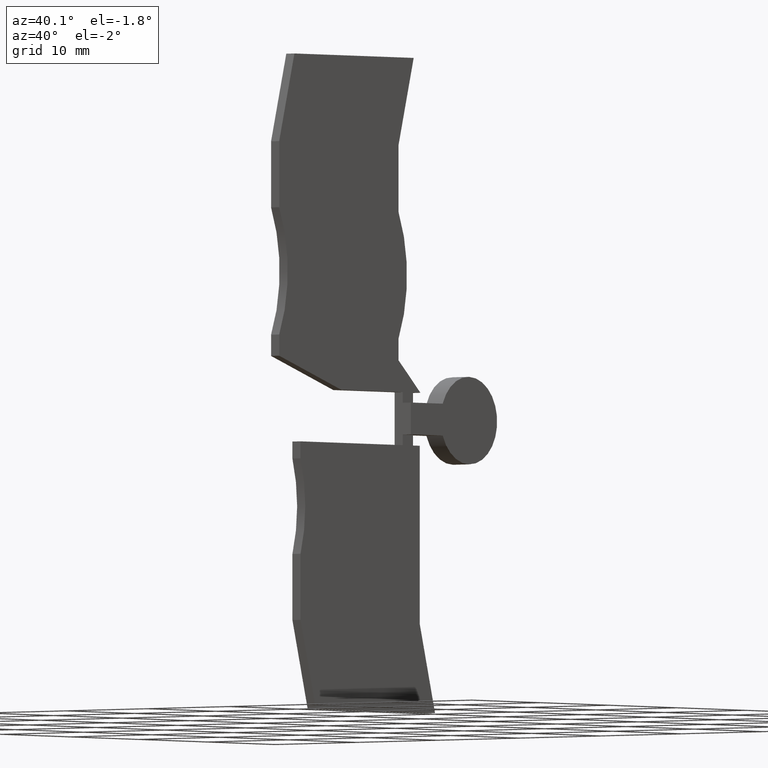
[diagram: clean part render]
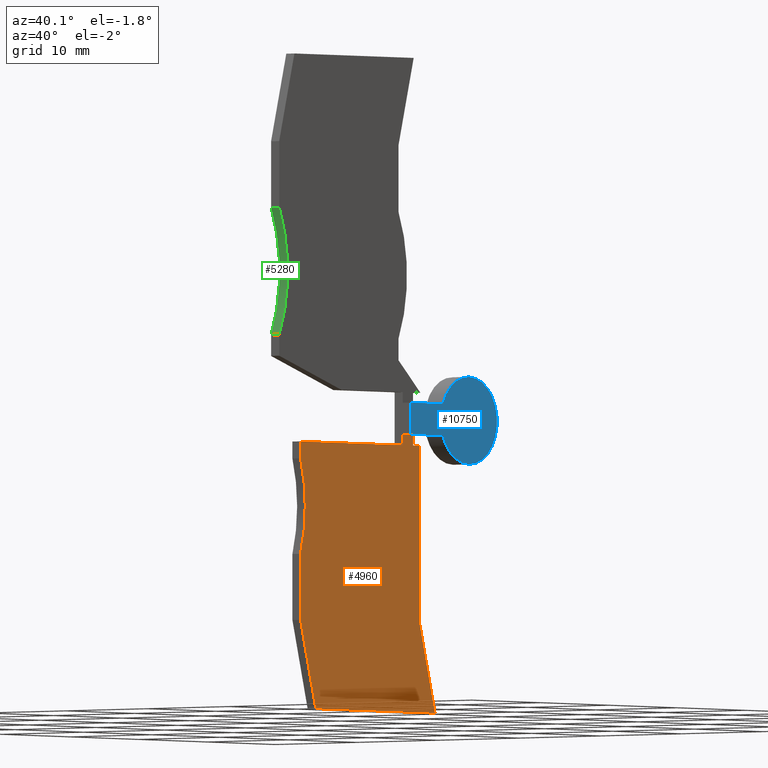
[diagram: same view with three faces highlighted in distinct colors, each labeled with its STEP entity id]
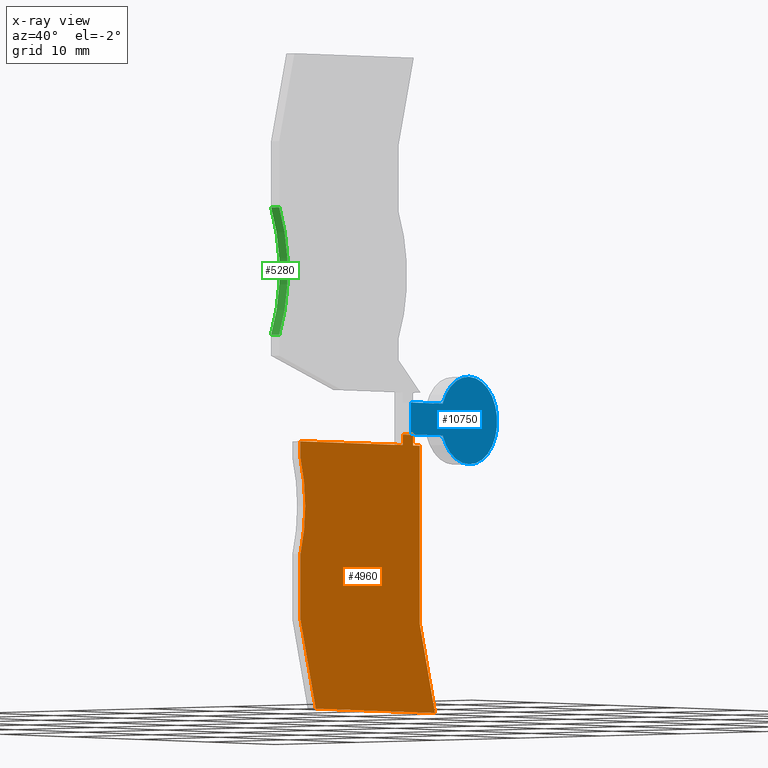
[diagram: x-ray of the same camera — body ghosted, the three highlighted faces saturated]
A machine part, auxiliary view with three faces highlighted in distinct colors.
The next image is the same camera in x-ray (body ghosted, the three faces saturated) — at least one of them is partly hidden behind the body in this view.
Their STEP definitions:

[orange] entity #4960 — the highlighted planar face has unit normal (1, -0, 0).
#100=CARTESIAN_POINT('',(27.7926050903251,-19.4833568228386,
3.70000000003257));
#110=VERTEX_POINT('',#100);
#160=CARTESIAN_POINT('',(42.1016931115784,-23.9833568228416,
3.70000000003257));
#170=DIRECTION('',(0.,0.,1.));
#180=DIRECTION('',(-1.,1.22464679914735E-16,0.));
#190=AXIS2_PLACEMENT_3D('',#160,#170,#180);
#200=CIRCLE('',#190,15.);
#210=CARTESIAN_POINT('',(27.7926050903252,-28.4833568228446,
3.70000000003257));
#220=VERTEX_POINT('',#210);
#230=EDGE_CURVE('',#110,#220,#200,.T.);
#610=CARTESIAN_POINT('',(27.7926050903252,-34.7178123662187,
3.70000000003257));
#620=VERTEX_POINT('',#610);
#720=CARTESIAN_POINT('',(27.7926050903252,6.334125,3.70000000003257));
#730=DIRECTION('',(1.22464679914735E-16,1.,0.));
#740=VECTOR('',#730,1.);
#750=LINE('',#720,#740);
#760=EDGE_CURVE('',#620,#220,#750,.T.);
#2820=CARTESIAN_POINT('',(27.7926050903251,-17.8833568228378,
3.70000000003257));
#2830=VERTEX_POINT('',#2820);
#2980=CARTESIAN_POINT('',(12.8426048224249,-17.8833568228378,
3.70000000003257));
#2990=VERTEX_POINT('',#2980);
#3020=CARTESIAN_POINT('',(10.836572,-17.8833568228378,3.70000000003257))
;
#3030=DIRECTION('',(-1.,1.22464679914735E-16,0.));
#3040=VECTOR('',#3030,1.);
#3050=LINE('',#3020,#3040);
#3060=EDGE_CURVE('',#2830,#2990,#3050,.T.);
#3540=CARTESIAN_POINT('',(21.3424385553537,6.334125,3.70000000003257));
#3550=DIRECTION('',(-0.258819045102899,-0.965925826288967,0.));
#3560=VECTOR('',#3550,1.);
#3570=LINE('',#3540,#3560);
#3580=CARTESIAN_POINT('',(10.3426050903255,-34.717812366217,
3.70000000003257));
#3590=VERTEX_POINT('',#3580);
#3600=CARTESIAN_POINT('',(8.11446166854492,-43.0333568228397,
3.70000000003257));
#3610=VERTEX_POINT('',#3600);
#3620=EDGE_CURVE('',#3590,#3610,#3570,.T.);
#4270=CARTESIAN_POINT('',(13.1805663120009,-32.0955988228394,
3.70000000003257));
#4280=DIRECTION('',(0.,-0.,-1.));
#4290=DIRECTION('',(1.,-1.22464679914735E-16,0.));
#4300=AXIS2_PLACEMENT_3D('',#4270,#4280,#4290);
#4310=PLANE('',#4300);
#4320=CARTESIAN_POINT('',(10.3426050903255,6.334125,3.70000000003257));
#4330=DIRECTION('',(-1.83847064084899E-17,-1.,0.));
#4340=VECTOR('',#4330,1.);
#4350=LINE('',#4320,#4340);
#4360=CARTESIAN_POINT('',(10.3426050903255,-17.8833568228378,
3.70000000003257));
#4370=VERTEX_POINT('',#4360);
#4380=EDGE_CURVE('',#4370,#3590,#4350,.T.);
#4390=ORIENTED_EDGE('',*,*,#4380,.F.);
#4400=ORIENTED_EDGE('',*,*,#3620,.F.);
#4410=CARTESIAN_POINT('',(10.836572,-43.0333568228397,3.70000000003257))
;
#4420=DIRECTION('',(1.,-1.22464679914735E-16,0.));
#4430=VECTOR('',#4420,1.);
#4440=LINE('',#4410,#4430);
#4450=CARTESIAN_POINT('',(25.5644616685449,-43.0333568228397,
3.70000000003257));
#4460=VERTEX_POINT('',#4450);
#4470=EDGE_CURVE('',#3610,#4460,#4440,.T.);
#4480=ORIENTED_EDGE('',*,*,#4470,.F.);
#4490=CARTESIAN_POINT('',(38.7924385553539,6.334125,3.70000000003257));
#4500=DIRECTION('',(0.258819045102903,0.965925826288966,0.));
#4510=VECTOR('',#4500,1.);
#4520=LINE('',#4490,#4510);
#4530=EDGE_CURVE('',#4460,#620,#4520,.T.);
#4540=ORIENTED_EDGE('',*,*,#4530,.F.);
#4550=ORIENTED_EDGE('',*,*,#760,.F.);
#4560=ORIENTED_EDGE('',*,*,#230,.T.);
#4570=CARTESIAN_POINT('',(27.7926050903252,6.334125,3.70000000003257));
#4580=DIRECTION('',(1.22464679914735E-16,1.,0.));
#4590=VECTOR('',#4580,1.);
#4600=LINE('',#4570,#4590);
#4610=EDGE_CURVE('',#110,#2830,#4600,.T.);
#4620=ORIENTED_EDGE('',*,*,#4610,.F.);
#4630=ORIENTED_EDGE('',*,*,#3060,.F.);
#4640=CARTESIAN_POINT('',(12.8426048224249,6.334125,3.70000000003257));
#4650=DIRECTION('',(0.,1.,0.));
#4660=VECTOR('',#4650,1.);
#4670=LINE('',#4640,#4660);
#4680=CARTESIAN_POINT('',(12.8426048224249,-16.8833568228378,
3.70000000003257));
#4690=VERTEX_POINT('',#4680);
#4700=EDGE_CURVE('',#2990,#4690,#4670,.T.);
#4710=ORIENTED_EDGE('',*,*,#4700,.F.);
#4720=CARTESIAN_POINT('',(10.836572,-16.8833568228378,3.70000000003257))
;
#4730=DIRECTION('',(-1.,0.,0.));
#4740=VECTOR('',#4730,1.);
#4750=LINE('',#4720,#4740);
#4760=CARTESIAN_POINT('',(11.3426048224249,-16.8833568228378,
3.70000000003257));
#4770=VERTEX_POINT('',#4760);
#4780=EDGE_CURVE('',#4690,#4770,#4750,.T.);
#4790=ORIENTED_EDGE('',*,*,#4780,.F.);
#4800=CARTESIAN_POINT('',(11.3426048224249,6.334125,3.70000000003257));
#4810=DIRECTION('',(0.,-1.,0.));
#4820=VECTOR('',#4810,1.);
#4830=LINE('',#4800,#4820);
#4840=CARTESIAN_POINT('',(11.3426048224249,-17.8833568228378,
3.70000000003257));
#4850=VERTEX_POINT('',#4840);
#4860=EDGE_CURVE('',#4770,#4850,#4830,.T.);
#4870=ORIENTED_EDGE('',*,*,#4860,.F.);
#4880=CARTESIAN_POINT('',(10.836572,-17.8833568228378,3.70000000003257))
;
#4890=DIRECTION('',(-1.,1.22464679914735E-16,0.));
#4900=VECTOR('',#4890,1.);
#4910=LINE('',#4880,#4900);
#4920=EDGE_CURVE('',#4850,#4370,#4910,.T.);
#4930=ORIENTED_EDGE('',*,*,#4920,.F.);
#4940=EDGE_LOOP('',(#4930,#4870,#4790,#4710,#4630,#4620,#4560,#4550,
#4540,#4480,#4400,#4390));
#4950=FACE_OUTER_BOUND('',#4940,.T.);
#4960=ADVANCED_FACE('',(#4950),#4310,.T.);

[blue] entity #10750 — the highlighted planar face has unit normal (-1, 0, -0).
#7420=CARTESIAN_POINT('',(8.18518711016485,-13.8833568228378,
2.70000000003257));
#7430=VERTEX_POINT('',#7420);
#7510=CARTESIAN_POINT('',(8.18518711016486,-16.8833568228378,
2.70000000003257));
#7520=VERTEX_POINT('',#7510);
#7550=CARTESIAN_POINT('',(4.34260491212486,-15.3833568228378,
2.70000000003256));
#7560=DIRECTION('',(-6.1232339957367E-17,6.1232339957367E-17,-1.));
#7570=DIRECTION('',(-1.93617541585409E-33,1.,6.1232339957367E-17));
#7580=AXIS2_PLACEMENT_3D('',#7550,#7560,#7570);
#7590=CIRCLE('',#7580,4.12497732705185);
#7600=EDGE_CURVE('',#7520,#7430,#7590,.T.);
#8250=CARTESIAN_POINT('',(10.836572,-16.8833568228378,2.70000000003257))
;
#8260=DIRECTION('',(1.,0.,0.));
#8270=VECTOR('',#8260,1.);
#8280=LINE('',#8250,#8270);
#8290=CARTESIAN_POINT('',(12.8426048224249,-16.8833568228378,
2.70000000003257));
#8300=VERTEX_POINT('',#8290);
#8310=EDGE_CURVE('',#7520,#8300,#8280,.T.);
#9860=CARTESIAN_POINT('',(10.836572,-13.8833568228385,2.70000000003257))
;
#9870=DIRECTION('',(-1.,0.,0.));
#9880=VECTOR('',#9870,1.);
#9890=LINE('',#9860,#9880);
#9900=CARTESIAN_POINT('',(12.8426048224249,-13.8833568228378,
2.70000000003257));
#9910=VERTEX_POINT('',#9900);
#9920=EDGE_CURVE('',#9910,#7430,#9890,.T.);
#10590=CARTESIAN_POINT('',(14.7624696007493,-8.07882582283634,
2.70000000003257));
#10600=DIRECTION('',(0.,0.,1.));
#10610=DIRECTION('',(1.,0.,0.));
#10620=AXIS2_PLACEMENT_3D('',#10590,#10600,#10610);
#10630=PLANE('',#10620);
#10640=ORIENTED_EDGE('',*,*,#7600,.T.);
#10650=ORIENTED_EDGE('',*,*,#8310,.F.);
#10660=CARTESIAN_POINT('',(12.8426048224249,6.334125,2.70000000003257));
#10670=DIRECTION('',(0.,1.,0.));
#10680=VECTOR('',#10670,1.);
#10690=LINE('',#10660,#10680);
#10700=EDGE_CURVE('',#8300,#9910,#10690,.T.);
#10710=ORIENTED_EDGE('',*,*,#10700,.F.);
#10720=ORIENTED_EDGE('',*,*,#9920,.F.);
#10730=EDGE_LOOP('',(#10720,#10710,#10650,#10640));
#10740=FACE_OUTER_BOUND('',#10730,.T.);
#10750=ADVANCED_FACE('',(#10740),#10630,.F.);

[green] entity #5280 — the highlighted cylindrical surface (partial cylindrical patch) has radius 15 mm, axis along (-1, 0, -0).
#1070=CARTESIAN_POINT('',(30.9174891315682,-7.88335682284202,
3.70000000003257));
#1080=VERTEX_POINT('',#1070);
#1110=CARTESIAN_POINT('',(44.6652162164344,-1.88335682283906,
3.70000000003257));
#1120=DIRECTION('',(0.,0.,1.));
#1130=DIRECTION('',(1.,0.,0.));
#1140=AXIS2_PLACEMENT_3D('',#1110,#1120,#1130);
#1150=CIRCLE('',#1140,15.);
#1160=CARTESIAN_POINT('',(30.9174891315669,4.11664317716097,
3.70000000003257));
#1170=VERTEX_POINT('',#1160);
#1180=EDGE_CURVE('',#1170,#1080,#1150,.T.);
#4060=CARTESIAN_POINT('',(30.9174891315682,-7.88335682284202,
4.70000000003257));
#4070=VERTEX_POINT('',#4060);
#4100=CARTESIAN_POINT('',(30.9174891315682,-7.88335682284202,
3.70000000003257));
#4110=DIRECTION('',(0.,0.,-1.));
#4120=VECTOR('',#4110,1.);
#4130=LINE('',#4100,#4120);
#4140=EDGE_CURVE('',#4070,#1080,#4130,.T.);
#5040=CARTESIAN_POINT('',(44.6652162164344,-1.88335682283906,
3.70000000003257));
#5050=DIRECTION('',(0.,0.,1.));
#5060=DIRECTION('',(1.,0.,0.));
#5070=AXIS2_PLACEMENT_3D('',#5040,#5050,#5060);
#5080=CYLINDRICAL_SURFACE('',#5070,15.);
#5090=CARTESIAN_POINT('',(30.9174891315669,4.11664317716097,
3.70000000003257));
#5100=DIRECTION('',(0.,0.,1.));
#5110=VECTOR('',#5100,1.);
#5120=LINE('',#5090,#5110);
#5130=CARTESIAN_POINT('',(30.9174891315669,4.11664317716097,
4.70000000003257));
#5140=VERTEX_POINT('',#5130);
#5150=EDGE_CURVE('',#1170,#5140,#5120,.T.);
#5160=ORIENTED_EDGE('',*,*,#5150,.T.);
#5170=ORIENTED_EDGE('',*,*,#1180,.F.);
#5180=ORIENTED_EDGE('',*,*,#4140,.T.);
#5190=CARTESIAN_POINT('',(44.6652162164344,-1.88335682283906,
4.70000000003257));
#5200=DIRECTION('',(0.,0.,1.));
#5210=DIRECTION('',(1.,0.,0.));
#5220=AXIS2_PLACEMENT_3D('',#5190,#5200,#5210);
#5230=CIRCLE('',#5220,15.);
#5240=EDGE_CURVE('',#5140,#4070,#5230,.T.);
#5250=ORIENTED_EDGE('',*,*,#5240,.T.);
#5260=EDGE_LOOP('',(#5250,#5180,#5170,#5160));
#5270=FACE_OUTER_BOUND('',#5260,.T.);
#5280=ADVANCED_FACE('',(#5270),#5080,.F.);